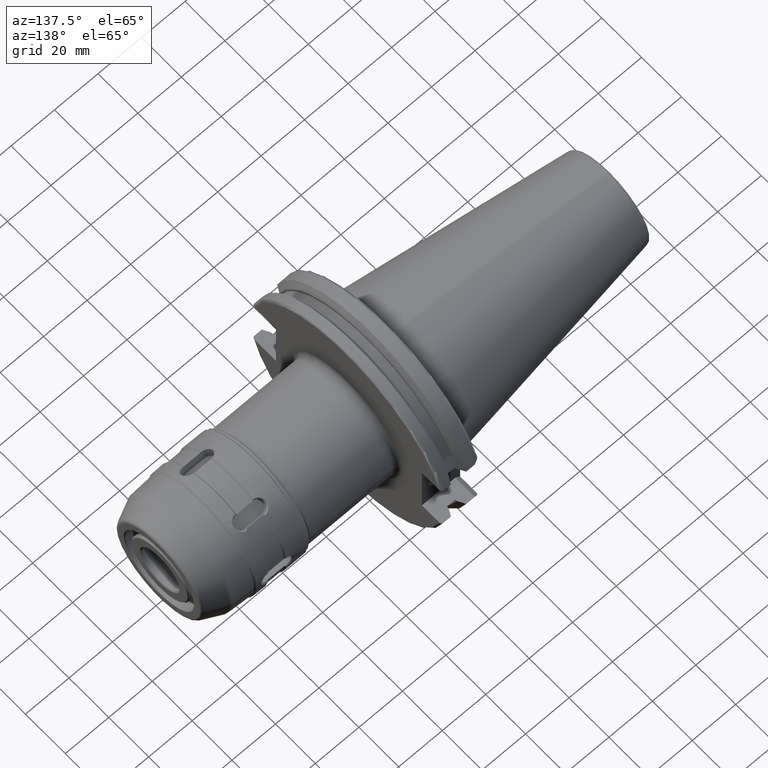
[diagram: clean part render]
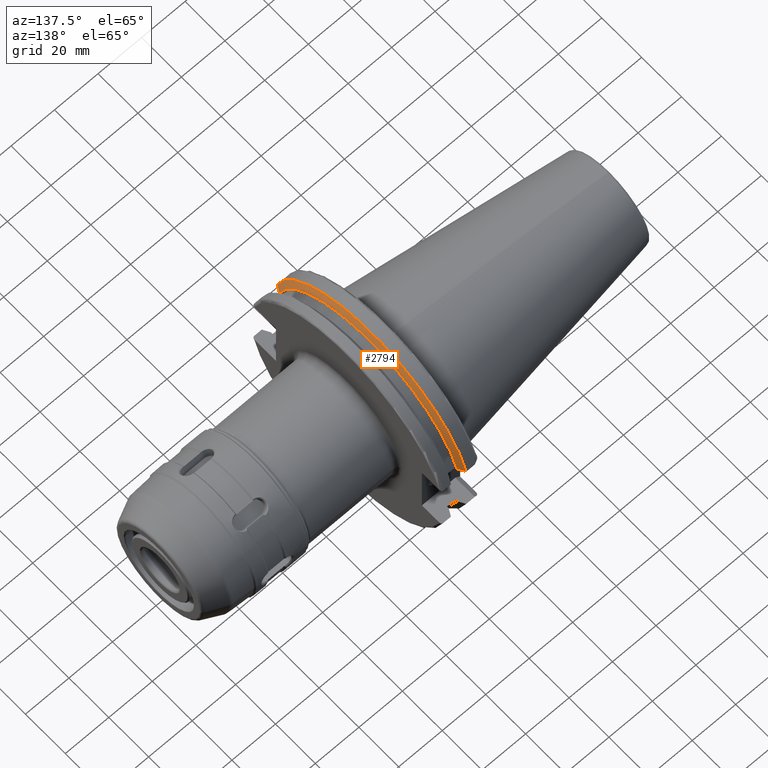
[diagram: same view with one face highlighted and labeled with its STEP entity id]
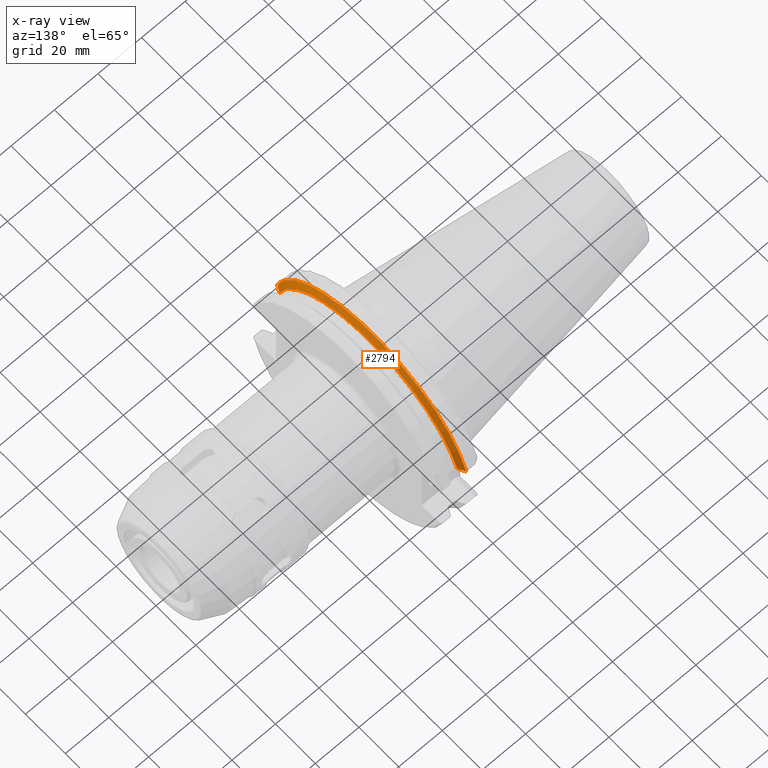
[diagram: x-ray of the same camera — body ghosted, the highlighted face saturated]
A machine part, auxiliary view. The second image highlights one B-rep face of the part: STEP entity #2794.
The next image is the same camera in x-ray: the body ghosted, the highlighted face saturated — about 0% of this face is hidden behind the body in this view.
In plain terms, the highlighted conical surface has half-angle 60 deg.
Its self-contained STEP definition (entity closure, byte-faithful):
#982=CARTESIAN_POINT('',(3.63E-1,-1.755415620302E0,5.1E-1));
#983=CARTESIAN_POINT('',(3.561489154291E-1,-1.767772709704E0,5.1E-1));
#984=CARTESIAN_POINT('',(3.423523907156E-1,-1.792636762952E0,5.1E-1));
#985=CARTESIAN_POINT('',(3.213758073448E-1,-1.830381503675E0,5.1E-1));
#986=CARTESIAN_POINT('',(3.072024993873E-1,-1.855846520213E0,5.1E-1));
#987=CARTESIAN_POINT('',(3.000688206583E-1,-1.868654328655E0,5.1E-1));
#989=CARTESIAN_POINT('',(3.000688206583E-1,0.E0,0.E0));
#990=DIRECTION('',(-1.E0,0.E0,0.E0));
#991=DIRECTION('',(0.E0,-9.647157091661E-1,2.632937532266E-1));
#992=AXIS2_PLACEMENT_3D('',#989,#990,#991);
#994=CARTESIAN_POINT('',(3.000688206583E-1,1.868654328655E0,5.1E-1));
#995=CARTESIAN_POINT('',(3.072010375535E-1,1.855849144790E0,5.1E-1));
#996=CARTESIAN_POINT('',(3.213724000982E-1,1.830387628611E0,5.1E-1));
#997=CARTESIAN_POINT('',(3.423490297672E-1,1.792642816556E0,5.1E-1));
#998=CARTESIAN_POINT('',(3.561474767616E-1,1.767775304584E0,5.1E-1));
#999=CARTESIAN_POINT('',(3.63E-1,1.755415620302E0,5.1E-1));
#1001=CARTESIAN_POINT('',(3.63E-1,0.E0,0.E0));
#1002=DIRECTION('',(1.E0,0.E0,0.E0));
#1003=DIRECTION('',(0.E0,9.602930089179E-1,2.789934354486E-1));
#1004=AXIS2_PLACEMENT_3D('',#1001,#1002,#1003);
#1140=VERTEX_POINT('',#994);
#1141=VERTEX_POINT('',#999);
#1162=VERTEX_POINT('',#982);
#1163=VERTEX_POINT('',#987);
#2783=CARTESIAN_POINT('',(3.315344103292E-1,0.E0,0.E0));
#2784=DIRECTION('',(-1.E0,0.E0,0.E0));
#2785=DIRECTION('',(0.E0,0.E0,-1.E0));
#2786=AXIS2_PLACEMENT_3D('',#2783,#2784,#2785);
#2787=CONICAL_SURFACE('',#2786,1.8825E0,6.E1);
#2788=ORIENTED_EDGE('',*,*,#2542,.T.);
#2789=ORIENTED_EDGE('',*,*,#2373,.T.);
#2790=ORIENTED_EDGE('',*,*,#2509,.T.);
#2791=ORIENTED_EDGE('',*,*,#2763,.T.);
#2792=EDGE_LOOP('',(#2788,#2789,#2790,#2791));
#2793=FACE_OUTER_BOUND('',#2792,.F.);
#2794=ADVANCED_FACE('',(#2793),#2787,.T.);
#988=B_SPLINE_CURVE_WITH_KNOTS('',3,(#982,#983,#984,#985,#986,#987),
.UNSPECIFIED.,.F.,.F.,(4,1,1,4),(0.E0,3.333333333333E-1,6.666666666667E-1,1.E0),
.UNSPECIFIED.);
#993=CIRCLE('',#992,1.937E0);
#1000=B_SPLINE_CURVE_WITH_KNOTS('',3,(#994,#995,#996,#997,#998,#999),
.UNSPECIFIED.,.F.,.F.,(4,1,1,4),(0.E0,3.333333333333E-1,6.666666666667E-1,1.E0),
.UNSPECIFIED.);
#1005=CIRCLE('',#1004,1.828E0);
#2373=EDGE_CURVE('',#1163,#1140,#993,.T.);
#2509=EDGE_CURVE('',#1140,#1141,#1000,.T.);
#2542=EDGE_CURVE('',#1162,#1163,#988,.T.);
#2763=EDGE_CURVE('',#1141,#1162,#1005,.T.);